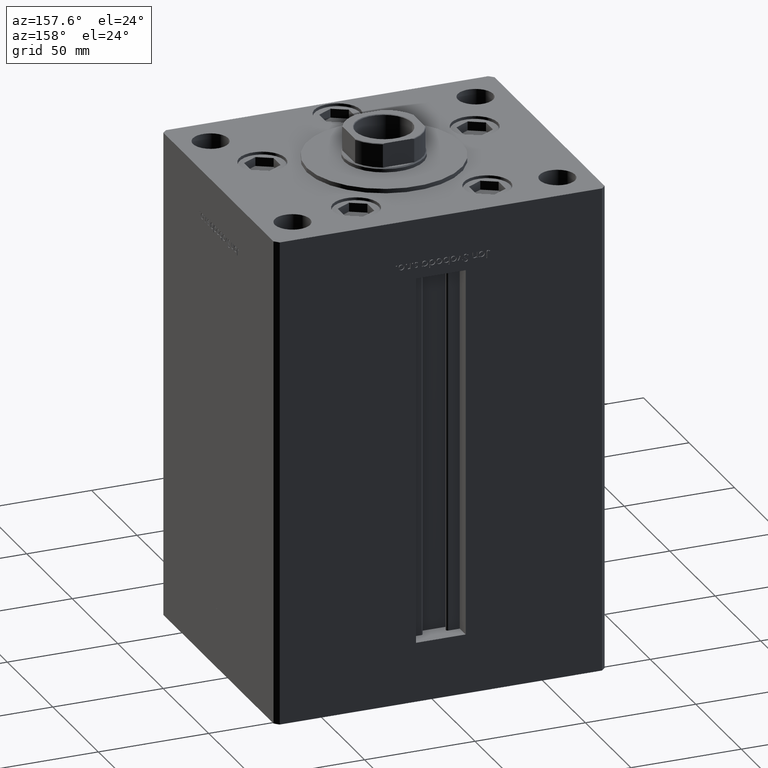
[diagram: clean part render]
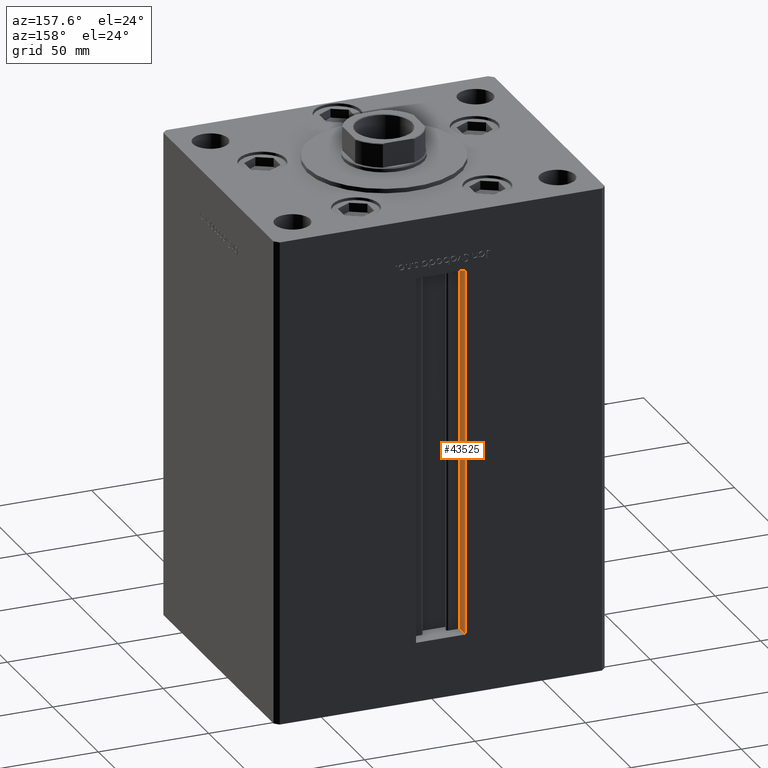
[diagram: same view with one face highlighted and labeled with its STEP entity id]
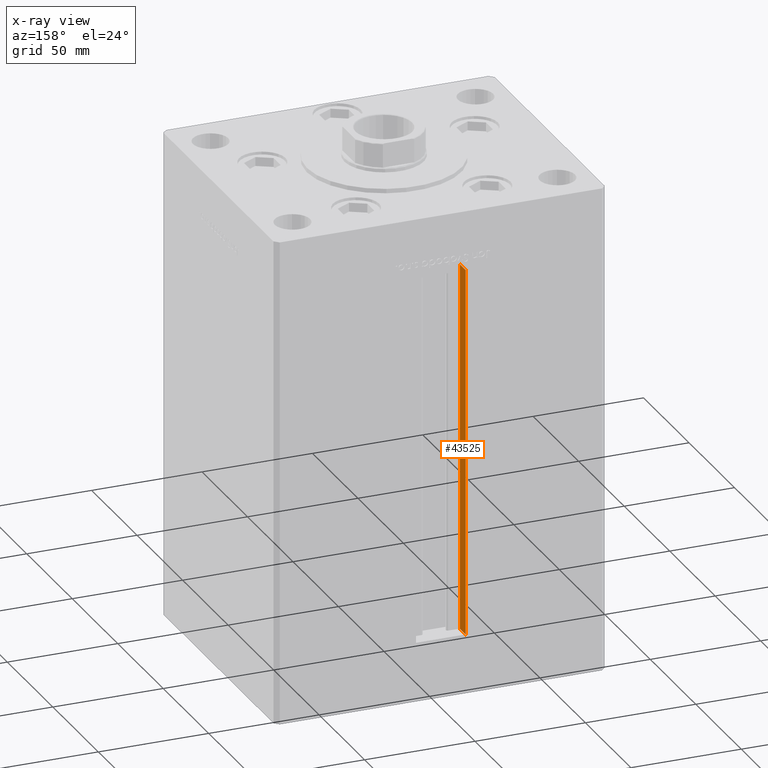
[diagram: x-ray of the same camera — body ghosted, the highlighted face saturated]
A machine part, auxiliary view. The second image highlights one B-rep face of the part: STEP entity #43525.
The next image is the same camera in x-ray: the body ghosted, the highlighted face saturated — about 0% of this face is hidden behind the body in this view.
In plain terms, the highlighted planar face has unit normal (-1, 0, 0).
Its self-contained STEP definition (entity closure, byte-faithful):
#13 = CARTESIAN_POINT ( 'NONE',  ( -11.25000000000000178, 62.49999999999999289, 166.9999999999999432 ) ) ;
#401 = LINE ( 'NONE', #38497, #13625 ) ;
#1405 = CARTESIAN_POINT ( 'NONE',  ( -11.25000000000000178, 62.49999999999999289, 0.000000000000000000 ) ) ;
#1781 = EDGE_CURVE ( 'NONE', #3517, #7877, #24126, .T. ) ;
#1802 = EDGE_CURVE ( 'NONE', #49798, #14920, #401, .T. ) ;
#2418 = DIRECTION ( 'NONE',  ( -0.000000000000000000, -0.000000000000000000, 1.000000000000000000 ) ) ;
#2826 = ORIENTED_EDGE ( 'NONE', *, *, #1781, .T. ) ;
#3517 = VERTEX_POINT ( 'NONE', #1405 ) ;
#4095 = DIRECTION ( 'NONE',  ( -0.000000000000000000, -0.000000000000000000, 1.000000000000000000 ) ) ;
#5203 = CARTESIAN_POINT ( 'NONE',  ( -11.25000000000000178, 55.99999999999999289, 0.000000000000000000 ) ) ;
#6044 = VECTOR ( 'NONE', #4095, 1000.000000000000000 ) ;
#7524 = PLANE ( 'NONE',  #17798 ) ;
#7575 = ORIENTED_EDGE ( 'NONE', *, *, #41628, .F. ) ;
#7877 = VERTEX_POINT ( 'NONE', #13 ) ;
#11221 = CARTESIAN_POINT ( 'NONE',  ( -11.25000000000000178, 55.99999999999999289, 0.000000000000000000 ) ) ;
#13625 = VECTOR ( 'NONE', #2418, 1000.000000000000000 ) ;
#14920 = VERTEX_POINT ( 'NONE', #19801 ) ;
#15434 = DIRECTION ( 'NONE',  ( -1.000000000000000000, 0.000000000000000000, 0.000000000000000000 ) ) ;
#17798 = AXIS2_PLACEMENT_3D ( 'NONE', #11221, #15434, #39647 ) ;
#19242 = CARTESIAN_POINT ( 'NONE',  ( -11.25000000000000178, 0.000000000000000000, 167.0000000000000000 ) ) ;
#19801 = CARTESIAN_POINT ( 'NONE',  ( -11.25000000000000178, 55.99999999999999289, 166.9999999999999432 ) ) ;
#20168 = EDGE_CURVE ( 'NONE', #14920, #7877, #26911, .T. ) ;
#22749 = EDGE_LOOP ( 'NONE', ( #42965, #7575, #2826, #30112 ) ) ;
#22791 = VECTOR ( 'NONE', #50430, 1000.000000000000000 ) ;
#23215 = DIRECTION ( 'NONE',  ( 0.000000000000000000, 1.000000000000000000, 0.000000000000000000 ) ) ;
#24126 = LINE ( 'NONE', #40169, #6044 ) ;
#26911 = LINE ( 'NONE', #19242, #39144 ) ;
#30112 = ORIENTED_EDGE ( 'NONE', *, *, #20168, .F. ) ;
#34337 = LINE ( 'NONE', #38535, #22791 ) ;
#35186 = FACE_OUTER_BOUND ( 'NONE', #22749, .T. ) ;
#38497 = CARTESIAN_POINT ( 'NONE',  ( -11.25000000000000178, 55.99999999999999289, 0.000000000000000000 ) ) ;
#38535 = CARTESIAN_POINT ( 'NONE',  ( -11.25000000000000178, 55.99999999999999289, 0.000000000000000000 ) ) ;
#39144 = VECTOR ( 'NONE', #23215, 1000.000000000000000 ) ;
#39647 = DIRECTION ( 'NONE',  ( 0.000000000000000000, 0.000000000000000000, 1.000000000000000000 ) ) ;
#40169 = CARTESIAN_POINT ( 'NONE',  ( -11.25000000000000178, 62.49999999999999289, 0.000000000000000000 ) ) ;
#41628 = EDGE_CURVE ( 'NONE', #3517, #49798, #34337, .T. ) ;
#42965 = ORIENTED_EDGE ( 'NONE', *, *, #1802, .F. ) ;
#43525 = ADVANCED_FACE ( 'NONE', ( #35186 ), #7524, .F. ) ;
#49798 = VERTEX_POINT ( 'NONE', #5203 ) ;
#50430 = DIRECTION ( 'NONE',  ( -0.000000000000000000, -1.000000000000000000, -0.000000000000000000 ) ) ;